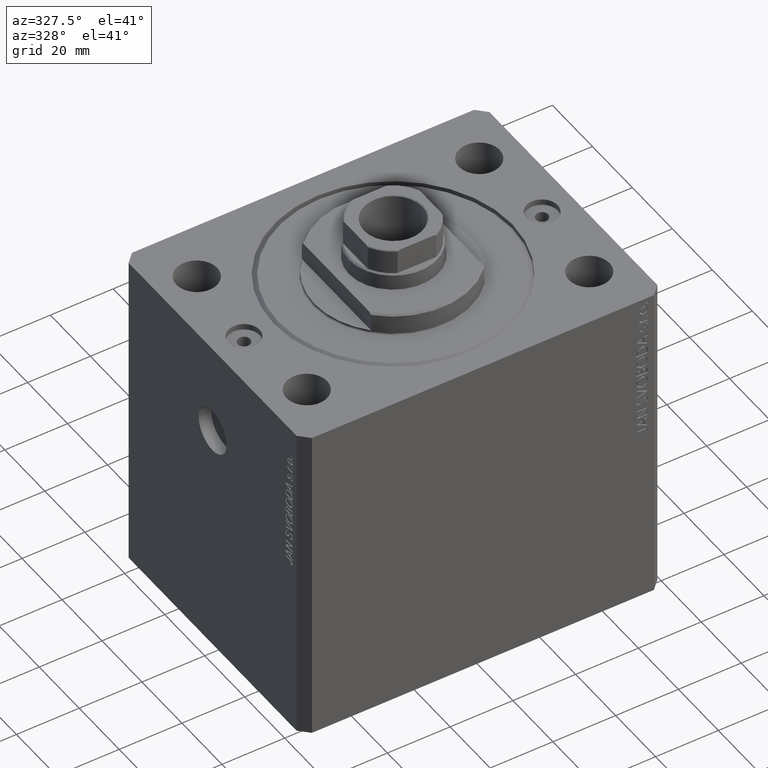
[diagram: clean part render]
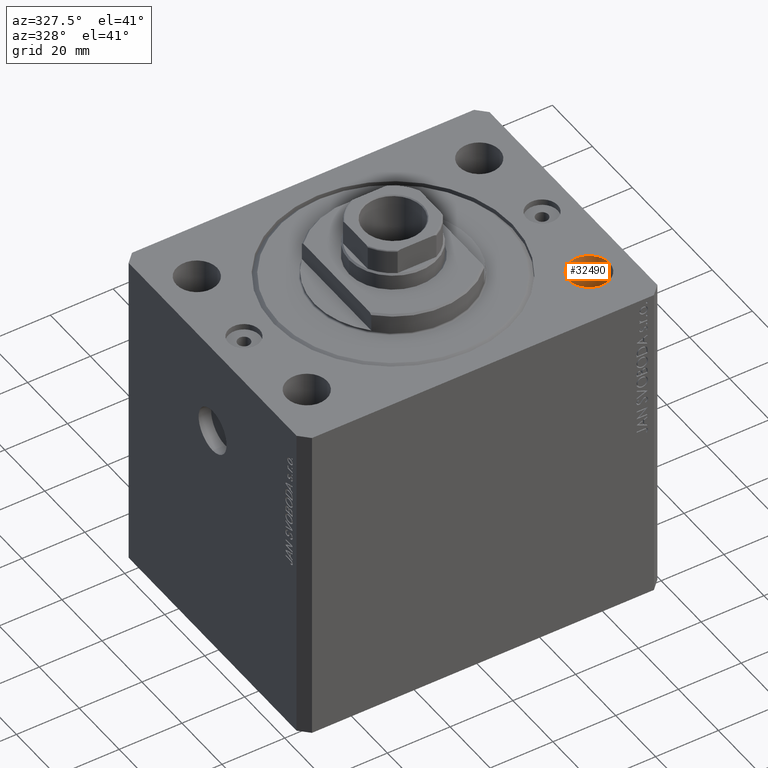
[diagram: same view with one face highlighted and labeled with its STEP entity id]
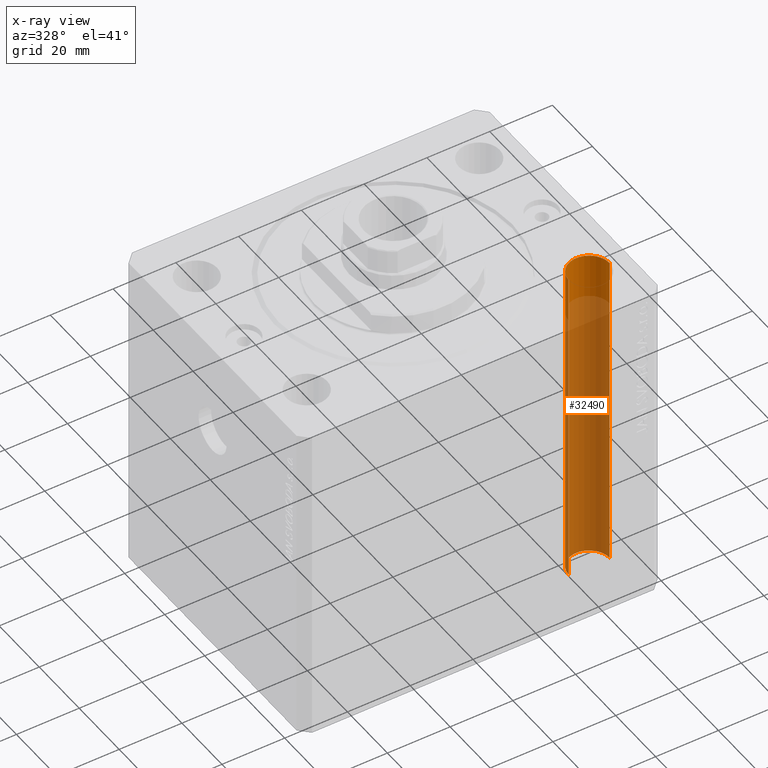
[diagram: x-ray of the same camera — body ghosted, the highlighted face saturated]
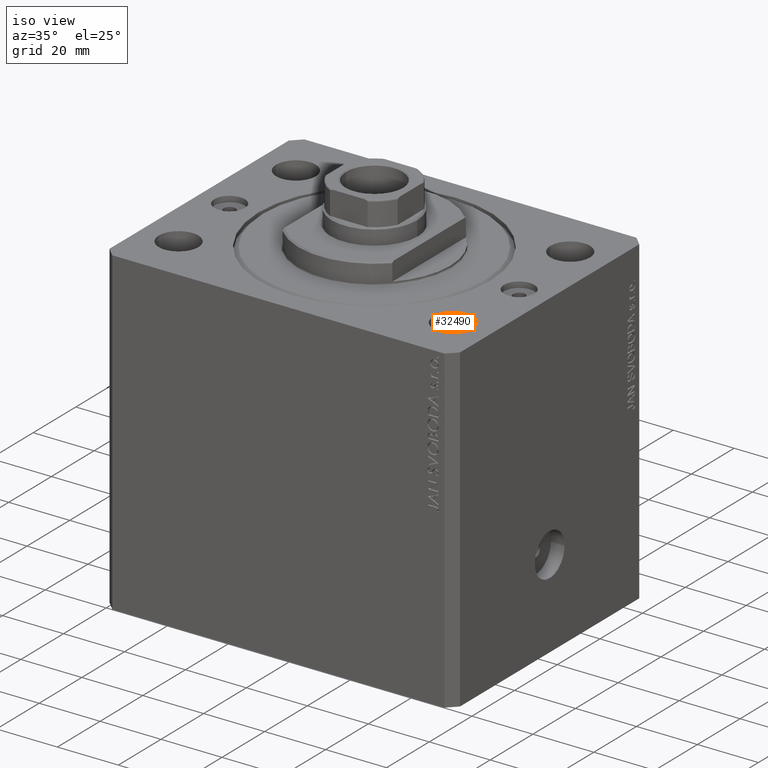
[diagram: same view with one face highlighted and labeled with its STEP entity id]
A machine part, auxiliary view. The second image highlights one B-rep face of the part: STEP entity #32490.
The next image is the same camera in x-ray: the body ghosted, the highlighted face saturated — about 86% of this face is hidden behind the body in this view.
A second angle (iso view) of the same face is appended — the face is thin or edge-on in the first view.
In plain terms, the highlighted cylindrical surface (edge-blend (fillet) strip) has radius 6.5 mm, axis along (0, 0, 1).
Its self-contained STEP definition (entity closure, byte-faithful):
#547 = EDGE_CURVE ( 'NONE', #3032, #24650, #26203, .T. ) ;
#3032 = VERTEX_POINT ( 'NONE', #12242 ) ;
#4439 = CARTESIAN_POINT ( 'NONE',  ( 44.99999999999998579, -27.50000000000000355, -105.0000000000000000 ) ) ;
#4451 = FACE_OUTER_BOUND ( 'NONE', #33455, .T. ) ;
#7878 = AXIS2_PLACEMENT_3D ( 'NONE', #4439, #19484, #26863 ) ;
#9258 = AXIS2_PLACEMENT_3D ( 'NONE', #38994, #31372, #20631 ) ;
#12242 = CARTESIAN_POINT ( 'NONE',  ( 38.49999999999998579, -27.50000000000000355, -105.0000000000000000 ) ) ;
#12275 = ORIENTED_EDGE ( 'NONE', *, *, #22957, .T. ) ;
#14271 = ORIENTED_EDGE ( 'NONE', *, *, #38035, .T. ) ;
#15228 = DIRECTION ( 'NONE',  ( -0.000000000000000000, -0.000000000000000000, 1.000000000000000000 ) ) ;
#18880 = VECTOR ( 'NONE', #26089, 1000.000000000000000 ) ;
#19162 = AXIS2_PLACEMENT_3D ( 'NONE', #37841, #36912, #22835 ) ;
#19484 = DIRECTION ( 'NONE',  ( -0.000000000000000000, -0.000000000000000000, -1.000000000000000000 ) ) ;
#20631 = DIRECTION ( 'NONE',  ( 1.000000000000000000, 0.000000000000000000, 0.000000000000000000 ) ) ;
#22439 = ORIENTED_EDGE ( 'NONE', *, *, #30164, .T. ) ;
#22835 = DIRECTION ( 'NONE',  ( 1.000000000000000000, 0.000000000000000000, 0.000000000000000000 ) ) ;
#22957 = EDGE_CURVE ( 'NONE', #41560, #42500, #43995, .T. ) ;
#24211 = VECTOR ( 'NONE', #15228, 1000.000000000000000 ) ;
#24650 = VERTEX_POINT ( 'NONE', #40237 ) ;
#25496 = CARTESIAN_POINT ( 'NONE',  ( 38.49999999999998579, -27.50000000000000355, -123.3847763108502278 ) ) ;
#25637 = ORIENTED_EDGE ( 'NONE', *, *, #547, .F. ) ;
#26089 = DIRECTION ( 'NONE',  ( -0.000000000000000000, -0.000000000000000000, 1.000000000000000000 ) ) ;
#26203 = LINE ( 'NONE', #25496, #24211 ) ;
#26863 = DIRECTION ( 'NONE',  ( 1.000000000000000000, 0.000000000000000000, 0.000000000000000000 ) ) ;
#29241 = CIRCLE ( 'NONE', #7878, 6.499999999999999112 ) ;
#29858 = CIRCLE ( 'NONE', #9258, 6.499999999999999112 ) ;
#30164 = EDGE_CURVE ( 'NONE', #42500, #24650, #29858, .T. ) ;
#31372 = DIRECTION ( 'NONE',  ( 0.000000000000000000, 0.000000000000000000, 1.000000000000000000 ) ) ;
#32342 = CARTESIAN_POINT ( 'NONE',  ( 51.49999999999998579, -27.50000000000000355, -105.0000000000000000 ) ) ;
#32490 = ADVANCED_FACE ( 'NONE', ( #4451 ), #37607, .F. ) ;
#33455 = EDGE_LOOP ( 'NONE', ( #25637, #14271, #12275, #22439 ) ) ;
#36912 = DIRECTION ( 'NONE',  ( -0.000000000000000000, -0.000000000000000000, 1.000000000000000000 ) ) ;
#37059 = CARTESIAN_POINT ( 'NONE',  ( 51.49999999999998579, -27.50000000000000355, -123.3847763108502278 ) ) ;
#37607 = CYLINDRICAL_SURFACE ( 'NONE', #19162, 6.499999999999999112 ) ;
#37841 = CARTESIAN_POINT ( 'NONE',  ( 44.99999999999998579, -27.50000000000000355, -123.3847763108502278 ) ) ;
#38035 = EDGE_CURVE ( 'NONE', #3032, #41560, #29241, .T. ) ;
#38994 = CARTESIAN_POINT ( 'NONE',  ( 44.99999999999998579, -27.50000000000000355, 0.000000000000000000 ) ) ;
#40237 = CARTESIAN_POINT ( 'NONE',  ( 38.49999999999998579, -27.50000000000000355, 0.000000000000000000 ) ) ;
#41121 = CARTESIAN_POINT ( 'NONE',  ( 51.49999999999998579, -27.50000000000000355, 0.000000000000000000 ) ) ;
#41560 = VERTEX_POINT ( 'NONE', #32342 ) ;
#42500 = VERTEX_POINT ( 'NONE', #41121 ) ;
#43995 = LINE ( 'NONE', #37059, #18880 ) ;